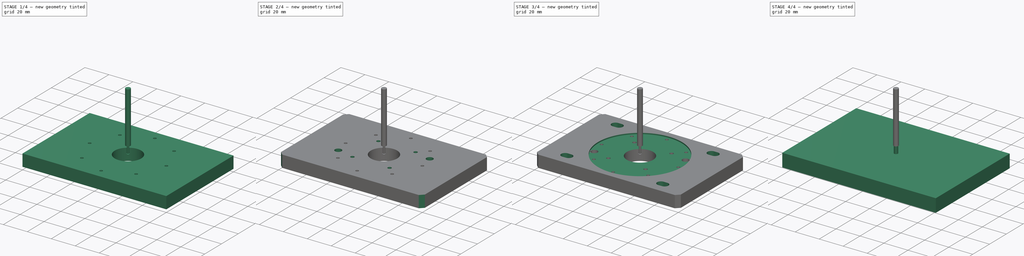
[diagram: build sequence overview — one tinted view per stage of 4, left to right]
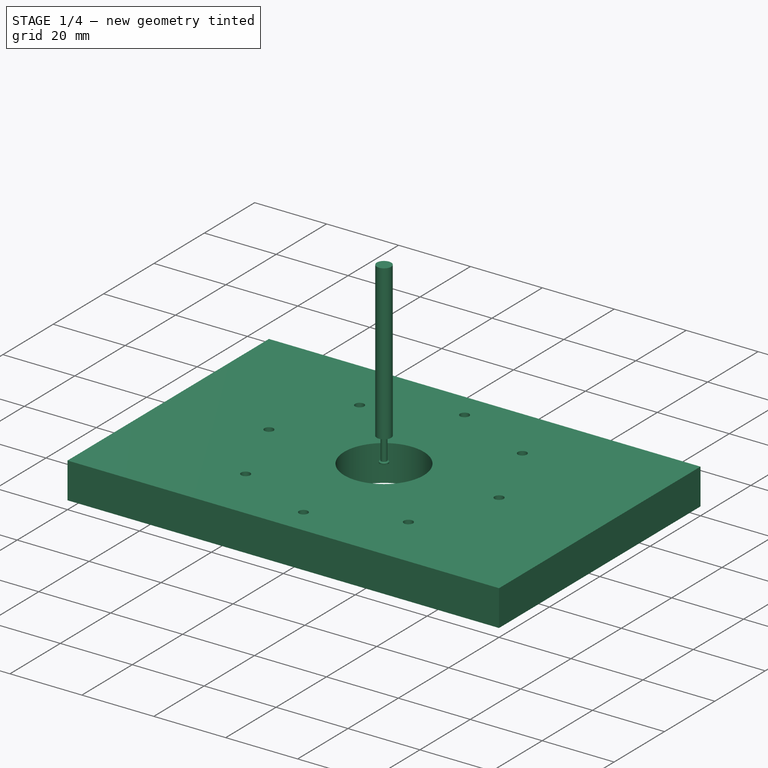
[diagram: stage 1 of 4 — iso view after this stage's code; geometry added in this stage tinted green]
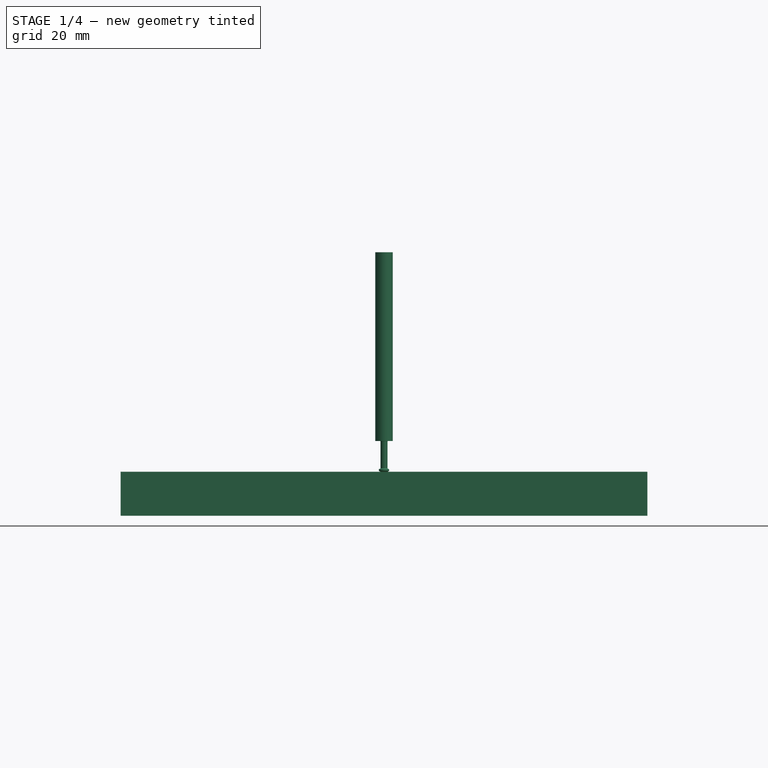
[diagram: stage 1 of 4 — front view after this stage's code; geometry added in this stage tinted green]
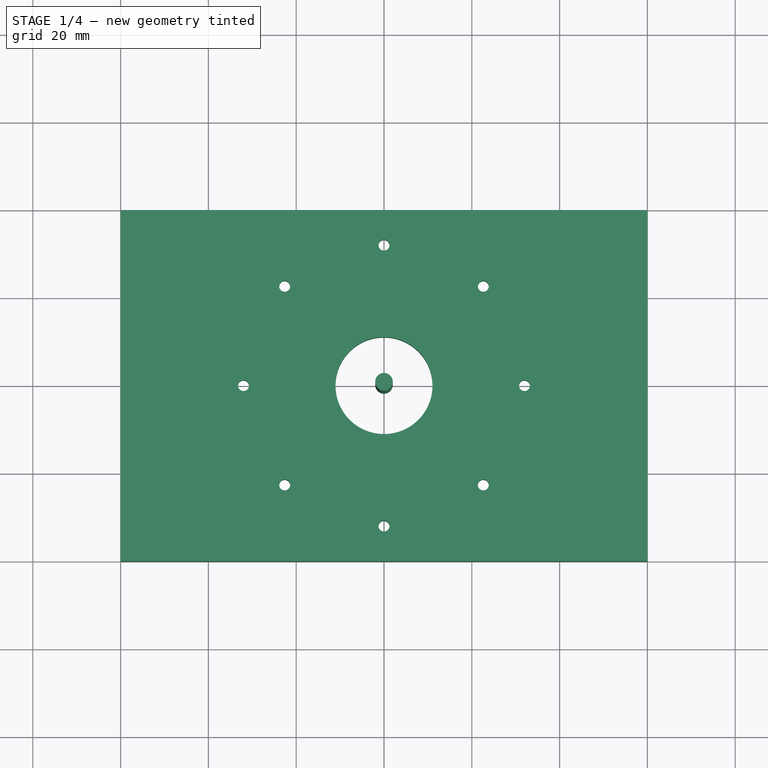
[diagram: stage 1 of 4 — top view after this stage's code; geometry added in this stage tinted green]
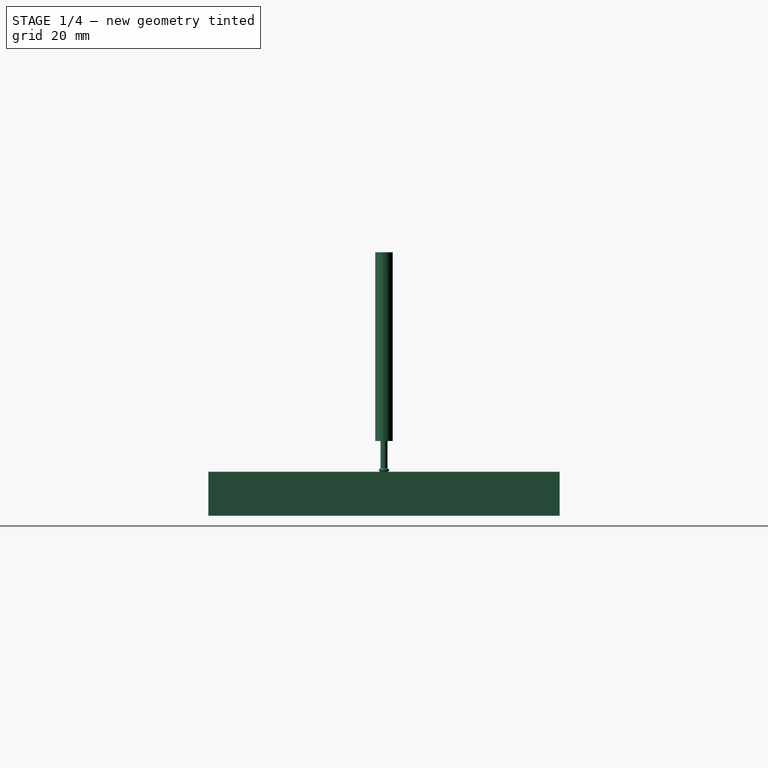
[diagram: stage 1 of 4 — right view after this stage's code; geometry added in this stage tinted green]
FCSTD DOCUMENT  (FreeCAD 0.21R33668 +26 (Git))
Label: 4axis_bracet
License: All rights reserved
LicenseURL: http://en.wikipedia.org/wiki/All_rights_reserved
objects: Path::FeaturePython×12, Sketcher::SketchObject×9, Part::FeaturePython×6, PartDesign::Pocket×6, App::FeaturePython×3, App::DocumentObjectGroup×3, PartDesign::Pad×1, PartDesign::Chamfer×1, PartDesign::Body×1
note: 38 computed .brp shape members not serialized (recipe doc carries the construction recipe); baked Part::Feature solids carry a one-line shape summary decoded from their .brp

FEATURE [Sketcher::SketchObject] Sketch
  FullyConstrained = true
  MapMode = 5
  Support = -> [XY_Plane]
  sketch-geometry (28):
    g0: Circle CenterX=0 CenterY=0 CenterZ=0 NormalX=0 NormalY=0 NormalZ=1 AngleXU=0 Radius=25
    g1: Circle CenterX=0 CenterY=0 CenterZ=0 NormalX=0 NormalY=0 NormalZ=1 AngleXU=0 Radius=35
    g2: Circle CenterX=0 CenterY=0 CenterZ=0 NormalX=0 NormalY=0 NormalZ=1 AngleXU=0 Radius=22
    g3: Circle CenterX=19.0526 CenterY=11 CenterZ=0 NormalX=0 NormalY=0 NormalZ=1 AngleXU=0 Radius=1.6
    g4: LineSegment StartX=0 StartY=0 StartZ=0 EndX=19.0526 EndY=11 EndZ=0
    g5: LineSegment StartX=0 StartY=0 StartZ=0 EndX=11 EndY=19.0526 EndZ=0
    g6: Circle CenterX=11 CenterY=19.0526 CenterZ=0 NormalX=0 NormalY=0 NormalZ=1 AngleXU=0 Radius=1.6
    g7: Circle CenterX=-19.0526 CenterY=11 CenterZ=0 NormalX=0 NormalY=0 NormalZ=1 AngleXU=0 Radius=1.6
    g8: Circle CenterX=-11 CenterY=19.0526 CenterZ=0 NormalX=0 NormalY=0 NormalZ=1 AngleXU=0 Radius=1.6
    g9: Circle CenterX=-19.0526 CenterY=-11 CenterZ=0 NormalX=0 NormalY=0 NormalZ=1 AngleXU=0 Radius=1.6
    g10: Circle CenterX=-11 CenterY=-19.0526 CenterZ=0 NormalX=0 NormalY=0 NormalZ=1 AngleXU=0 Radius=1.6
    g11: Circle CenterX=11 CenterY=-19.0526 CenterZ=0 NormalX=0 NormalY=0 NormalZ=1 AngleXU=0 Radius=1.6
    g12: Circle CenterX=19.0526 CenterY=-11 CenterZ=0 NormalX=0 NormalY=0 NormalZ=1 AngleXU=0 Radius=1.6
    g13: Circle CenterX=0 CenterY=0 CenterZ=0 NormalX=0 NormalY=0 NormalZ=1 AngleXU=0 Radius=32
    g14: LineSegment StartX=0 StartY=0 StartZ=0 EndX=22.6274 EndY=22.6274 EndZ=0
    g15: Circle CenterX=22.6274 CenterY=22.6274 CenterZ=0 NormalX=0 NormalY=0 NormalZ=1 AngleXU=0 Radius=1.6
    g16: Circle CenterX=32 CenterY=0 CenterZ=0 NormalX=0 NormalY=0 NormalZ=1 AngleXU=0 Radius=1.6
    g17: Circle CenterX=0 CenterY=32 CenterZ=0 NormalX=0 NormalY=0 NormalZ=1 AngleXU=0 Radius=1.6
    g18: Circle CenterX=-22.6274 CenterY=22.6274 CenterZ=0 NormalX=0 NormalY=0 NormalZ=1 AngleXU=0 Radius=1.6
    g19: Circle CenterX=-32 CenterY=0 CenterZ=0 NormalX=0 NormalY=0 NormalZ=1 AngleXU=0 Radius=1.6
    g20: Circle CenterX=-22.6274 CenterY=-22.6274 CenterZ=0 NormalX=0 NormalY=0 NormalZ=1 AngleXU=0 Radius=1.6
    g21: Circle CenterX=0 CenterY=-32 CenterZ=0 NormalX=0 NormalY=0 NormalZ=1 AngleXU=0 Radius=1.6
    g22: Circle CenterX=22.6274 CenterY=-22.6274 CenterZ=0 NormalX=0 NormalY=0 NormalZ=1 AngleXU=0 Radius=1.6
    g23: Circle CenterX=0 CenterY=0 CenterZ=0 NormalX=0 NormalY=0 NormalZ=1 AngleXU=0 Radius=25
    g24: Circle CenterX=29.5641 CenterY=12.2459 CenterZ=0 NormalX=0 NormalY=0 NormalZ=1 AngleXU=0 Radius=2.75
    g25: Circle CenterX=-29.5641 CenterY=-12.2459 CenterZ=0 NormalX=0 NormalY=0 NormalZ=1 AngleXU=0 Radius=2.75
    g26: LineSegment StartX=0 StartY=0 StartZ=0 EndX=29.5641 EndY=12.2459 EndZ=0
    g27: GeomPoint X=0 Y=0 Z=0
  constraints (58):
    c: Coincident(g0,g-1)
    c: Diameter(g0) = 50
    c: Coincident(g1,g0)
    c: Diameter(g1) = 70
    c: Coincident(g2,g0)
    c: Diameter(g2) = 44
    c: Coincident(g4,g0)
    c: PointOnObject(g4,g2)
    c: Coincident(g5,g0)
    c: PointOnObject(g5,g2)
    c: Angle(g-1,g4) = 0.523599
    c: Angle(g-1,g5) = 1.0472
    c: Coincident(g3,g4)
    c: Coincident(g6,g5)
    c: Equal(g3,g6)
    c: Equal(g3,g8)
    c: Equal(g3,g7)
    c: Equal(g3, g9-g12) x4
    c: Diameter(g3) = 3.2
    c: Symmetric(g6,g8,g-2)
    c: Symmetric(g3,g7,g-2)
    c: Symmetric(g7,g9,g-1)
    c: Symmetric(g8,g10,g-1)
    c: Symmetric(g6,g11,g-1)
    c: Symmetric(g3,g12,g-1)
    c: Coincident(g13,g0)
    c: Diameter(g13) = 64
    c: Coincident(g0,g14)
    c: Angle(g-1,g14) = 0.785398
    c: PointOnObject(g14,g13)
    c: Coincident(g15,g14)
    c: PointOnObject(g16,g13)
    c: PointOnObject(g17,g13)
    c: Equal(g17,g15)
    c: Equal(g17,g16)
    c: Diameter(g17) = 3.2
    c: Horizontal(g0,g16)
    c: Vertical(g0,g17)
    c: Equal(g17,g18)
    c: Equal(g18,g19)
    c: Equal(g19,g20)
    c: Equal(g20,g21)
    c: Equal(g21,g22)
    c: Symmetric(g18,g15,g-2)
    c: Symmetric(g19,g16,g-2)
    c: Symmetric(g18,g20,g-1)
    c: Symmetric(g17,g21,g-1)
    c: Symmetric(g22,g15,g-1)
    c: Coincident(g23,g0)
    c: Diameter(g23) = 50
    c: PointOnObject(g24,g13)
    c: Coincident(g26,g0)
    c: Angle(g-1,g26) = 0.392699
    c: Equal(g24,g25)
    c: Diameter(g24) = 5.5
    c: Coincident(g27,g0)
    c: Symmetric(g24,g25,g27)
    c: Coincident(g24,g26)
FEATURE [Sketcher::SketchObject] Sketch001
  FullyConstrained = true
  MapMode = 5
  Support = -> [XY_Plane]
  sketch-geometry (7):
    g0: Circle CenterX=0 CenterY=0 CenterZ=0 NormalX=0 NormalY=0 NormalZ=1 AngleXU=0 Radius=14
    g1: Circle CenterX=0 CenterY=0 CenterZ=0 NormalX=0 NormalY=0 NormalZ=1 AngleXU=0 Radius=18
    g2: Circle CenterX=0 CenterY=0 CenterZ=0 NormalX=0 NormalY=0 NormalZ=1 AngleXU=0 Radius=11
    g3: Circle CenterX=14 CenterY=0 CenterZ=0 NormalX=0 NormalY=0 NormalZ=1 AngleXU=0 Radius=1.6
    g4: Circle CenterX=0 CenterY=14 CenterZ=0 NormalX=0 NormalY=0 NormalZ=1 AngleXU=0 Radius=1.6
    g5: Circle CenterX=-14 CenterY=0 CenterZ=0 NormalX=0 NormalY=0 NormalZ=1 AngleXU=0 Radius=1.6
    g6: Circle CenterX=0 CenterY=-14 CenterZ=0 NormalX=0 NormalY=0 NormalZ=1 AngleXU=0 Radius=1.6
  constraints (18):
    c: Coincident(g0,g-1)
    c: Diameter(g0) = 28
    c: Coincident(g1,g0)
    c: Diameter(g1) = 36
    c: Coincident(g2,g1)
    c: Diameter(g2) = 22
    c: PointOnObject(g3,g0)
    c: PointOnObject(g4,g0)
    c: PointOnObject(g5,g0)
    c: PointOnObject(g6,g0)
    c: Equal(g3,g4)
    c: Equal(g3,g5)
    c: Equal(g3,g6)
    c: Diameter(g3) = 3.2
    c: Horizontal(g1,g3)
    c: Horizontal(g1,g5)
    c: Vertical(g1,g4)
    c: Vertical(g1,g6)
FEATURE [Sketcher::SketchObject] Sketch003
  ExternalGeometry = -> [Sketch]
  FullyConstrained = true
  MapMode = 5
  Support = -> [XY_Plane]
  sketch-geometry (12):
    g0: LineSegment StartX=-60 StartY=-40 StartZ=0 EndX=60 EndY=-40 EndZ=0
    g1: LineSegment StartX=60 StartY=-40 StartZ=0 EndX=60 EndY=40 EndZ=0
    g2: LineSegment StartX=60 StartY=40 StartZ=0 EndX=-60 EndY=40 EndZ=0
    g3: LineSegment StartX=-60 StartY=40 StartZ=0 EndX=-60 EndY=-40 EndZ=0
    g4: LineSegment StartX=-60 StartY=40 StartZ=0 EndX=-20 EndY=40 EndZ=0
    g5: LineSegment StartX=-20 StartY=40 StartZ=0 EndX=-20 EndY=-120 EndZ=0
    g6: LineSegment StartX=-20 StartY=-120 StartZ=0 EndX=-60 EndY=-120 EndZ=0
    g7: LineSegment StartX=-60 StartY=-120 StartZ=0 EndX=-60 EndY=40 EndZ=0
    g8: LineSegment StartX=60 StartY=40 StartZ=0 EndX=20 EndY=40 EndZ=0
    g9: LineSegment StartX=20 StartY=40 StartZ=0 EndX=20 EndY=-120 EndZ=0
    g10: LineSegment StartX=20 StartY=-120 StartZ=0 EndX=60 EndY=-120 EndZ=0
    g11: LineSegment StartX=60 StartY=-120 StartZ=0 EndX=60 EndY=40 EndZ=0
  constraints (34):
    c: Coincident(g0,g1)
    c: Coincident(g1,g2)
    c: Coincident(g2,g3)
    c: Coincident(g3,g0)
    c: Horizontal(g0)
    c: Horizontal(g2)
    c: Vertical(g1)
    c: Tangent(g1,g-3)
    c: DistanceY(g3,g3) = 80
    c: DistanceX(g2,g2) = 120
    c: Symmetric(g0,g1,g-4)
    c: Vertical(g3)
    c: Coincident(g4,g5)
    c: Coincident(g5,g6)
    c: Coincident(g6,g7)
    c: Coincident(g7,g4)
    c: Horizontal(g4)
    c: Horizontal(g6)
    c: Vertical(g5)
    c: Vertical(g7)
    c: Coincident(g4,g2)
    c: DistanceY(g5,g5) = 160
    c: DistanceX(g6,g6) = 40
    c: Coincident(g8,g9)
    c: Coincident(g9,g10)
    c: Coincident(g10,g11)
    c: Coincident(g11,g8)
    c: Horizontal(g8)
    c: Horizontal(g10)
    c: Vertical(g9)
    c: Vertical(g11)
    c: Coincident(g8,g1)
    c: Horizontal(g10,g6)
    c: Equal(g10,g6)
FEATURE [PartDesign::Pad] Pad
  Direction = (0,0,1)
  Length = 10
  Length2 = 10
  Profile = -> Sketch003
  ReferenceAxis = -> Sketch003 [N_Axis]
  Reversed = true
  Type = 0
FEATURE [Path::FeaturePython] _mm_Endmill  label="2mm Endmill001"  # Path/CAM operation (typed FeaturePython)
  HorizFeed = 6.66667
  HorizRapid = 6.66667
  SpindleDir = 0
  SpindleSpeed = 8000
  Tool = -> ToolBit001
  ToolNumber = 2
  VertFeed = 6.66667
  VertRapid = 6.66667
  expr: HorizRapid = SetupSheet.HorizRapid
  expr: VertRapid = SetupSheet.VertRapid
FEATURE [Path::FeaturePython] _mm_Endmill001  label="3mm Endmill001"  # Path/CAM operation (typed FeaturePython)
  HorizFeed = 6.66667
  HorizRapid = 6.66667
  SpindleDir = 0
  SpindleSpeed = 8000
  Tool = -> ToolBit002
  ToolNumber = 3
  VertFeed = 6.66667
  VertRapid = 6.66667
  expr: HorizRapid = SetupSheet.HorizRapid
  expr: VertRapid = SetupSheet.VertRapid
FEATURE [Sketcher::SketchObject] Sketch004
  ExternalGeometry = -> [Sketch]
  FullyConstrained = true
  MapMode = 5
  Support = -> [Pad]
  sketch-geometry (8):
    g0: Circle CenterX=-22.6274 CenterY=22.6274 CenterZ=0 NormalX=0 NormalY=0 NormalZ=1 AngleXU=0 Radius=1.25
    g1: Circle CenterX=0 CenterY=32 CenterZ=0 NormalX=0 NormalY=0 NormalZ=1 AngleXU=0 Radius=1.25
    g2: Circle CenterX=22.6274 CenterY=22.6274 CenterZ=0 NormalX=0 NormalY=0 NormalZ=1 AngleXU=0 Radius=1.25
    g3: Circle CenterX=32 CenterY=0 CenterZ=0 NormalX=0 NormalY=0 NormalZ=1 AngleXU=0 Radius=1.25
    g4: Circle CenterX=22.6274 CenterY=-22.6274 CenterZ=0 NormalX=0 NormalY=0 NormalZ=1 AngleXU=0 Radius=1.25
    g5: Circle CenterX=0 CenterY=-32 CenterZ=0 NormalX=0 NormalY=0 NormalZ=1 AngleXU=0 Radius=1.25
    g6: Circle CenterX=-22.6274 CenterY=-22.6274 CenterZ=0 NormalX=0 NormalY=0 NormalZ=1 AngleXU=0 Radius=1.25
    g7: Circle CenterX=-32 CenterY=0 CenterZ=0 NormalX=0 NormalY=0 NormalZ=1 AngleXU=0 Radius=1.25
  constraints (10):
    c: Coincident(g0,g-13)
    c: Coincident(g1,g-3)
    c: Coincident(g2,g-4)
    c: Coincident(g3,g-6)
    c: Coincident(g4,g-7)
    c: Coincident(g5,g-9)
    c: Coincident(g6,g-10)
    c: Coincident(g7,g-12)
    c: Equal(g7, g0-g6) x7
    c: Diameter(g7) = 2.5
FEATURE [PartDesign::Pocket] Pocket
  BaseFeature = -> Pad
  Direction = (0,0,-1)
  Length = 5
  Length2 = 5
  Profile = -> Sketch004
  ReferenceAxis = -> Sketch004 [N_Axis]
  Type = 1
FEATURE [Sketcher::SketchObject] Sketch006
  FullyConstrained = true
  MapMode = 5
  expr: Constraints[1] = 22 mm + 0.1 mm
  sketch-geometry (1):
    g0: Circle CenterX=0 CenterY=0 CenterZ=0 NormalX=0 NormalY=0 NormalZ=1 AngleXU=0 Radius=11.05
  constraints (2):
    c: Coincident(g0,g-1)
    c: Diameter(g0) = 22.1
FEATURE [PartDesign::Pocket] Pocket002
  AlongSketchNormal = false
  BaseFeature = -> Pocket
  Direction = (0,0,-1)
  Length = 6.9
  Length2 = 5
  Profile = -> Sketch006
  ReferenceAxis = -> Sketch006 [N_Axis]
  Type = 1
  expr: Length = 1 mm + 3.3 mm + 2.6 mm
FEATURE [Path::FeaturePython] Profile  # Path/CAM operation (typed FeaturePython)
  Active = true
  AreaParams:
    Tolerance = 1e-07
    FitArcs = True
    Simplify = False
    CleanDistance = 0.0
    Accuracy = 0.01
    Unit = 1.0
    MinArcPoints = 4
    MaxArcPoints = 100
    ClipperScale = 10000000.0
    Fill = 0
    Coplanar = 0
    Reorient = True
    Outline = False
    Explode = False
    OpenMode = 0
    Deflection = 0.01
    SubjectFill = 0
    ClipFill = 0
    Offset = -1.5
    ExtraPass = 0
    Stepover = 0.0
    LastStepover = 0.0
    JoinType = 0
    EndType = 0
    MiterLimit = 2.0
    RoundPrecision = 0.0
    PocketMode = 0
    ToolRadius = 1.0
    PocketExtraOffset = 0.0
    PocketStepover = 0.0
    PocketLastStepover = 0.0
    FromCenter = False
    Angle = 45.0
    AngleShift = 0.0
    Shift = 0.0
    Thicken = False
    SectionCount = -1
    Stepdown = 1.0
    SectionOffset = 0.0
    SectionTolerance = 1e-07
    SectionMode = 2
    Project = False
  Base = -> [Clone]
  ClearanceHeight = 6
  CoolantMode = 0
  CycleTime = 00:00:39
  Direction = 0
  FinalDepth = -1
  HandleMultipleFeatures = 0
  JoinType = 0
  MiterLimit = 0.1
  OffsetExtra = 0
  OpFinalDepth = -1
  OpStartDepth = 1
  OpStockZMax = 1
  OpStockZMin = -10
  OpToolDiameter = 3
  PathParams = {'orientation': 1, 'feedrate': 6.666666666666667, 'feedrate_v': 6.666666666666667, 'verbose': True, 'resume_height': 4.0, 'retraction': 6.0, 'return_end': True, 'preamble': False}
  SafeHeight = 4
  Side = 1
  SplitArcs = false
  StartDepth = 1
  StartPoint = (0,0,0)
  StepDown = 3
  ToolController = -> _mm_Endmill001
  UseComp = true
  UseStartPoint = false
  processCircles = false
  processHoles = false
  processPerimeter = true
  expr: ClearanceHeight = OpStockZMax + SetupSheet.ClearanceHeightOffset
  expr: FinalDepth = OpFinalDepth
  expr: SafeHeight = OpStockZMax + SetupSheet.SafeHeightOffset
  expr: StartDepth = OpStartDepth
  expr: StepDown = OpToolDiameter
FEATURE [Part::FeaturePython] ToolBit003  label="3mm-thread-cutter002"  # Path/CAM toolbit (typed FeaturePython)
  BitPropertyNames = Chipload | Crest | Diameter | Flutes | Length | Material | NeckDiameter | NeckLength | ShankDiameter | cuttingAngle
  BitShape = C:/Program Files/FreeCAD 0.21/Mod\Path\Tools\Shape\thread-mill.fcstd
  Chipload = 0
  Crest = 0.35
  Diameter = 2.35
  Flutes = 0
  Length = 50
  Material = 0
  NeckDiameter = 1.6
  NeckLength = 7
  ShankDiameter = 4
  ShapeName = thread_mill
  cuttingAngle = 60
FEATURE [Path::FeaturePython] _mm_thread_cutter  label="3mm-thread-cutter001"  # Path/CAM operation (typed FeaturePython)
  HorizFeed = 6.66
  HorizRapid = 6.66667
  SpindleDir = 0
  SpindleSpeed = 8000
  Tool = -> ToolBit003
  ToolNumber = 4
  VertFeed = 6.66
  VertRapid = 6.66667
  expr: HorizRapid = SetupSheet.HorizRapid
  expr: VertRapid = SetupSheet.VertRapid
FEATURE [App::DocumentObjectGroup] Tools
  Group = -> [_mm_Endmill,_mm_Endmill001,_mm_thread_cutter]
FEATURE [Path::FeaturePython] ThreadMilling  # Path/CAM operation (typed FeaturePython)
  Active = true
  Base = -> [Clone]
  ClearanceHeight = 6
  CoolantMode = 0
  CycleTime = 00:02:03
  Direction = 0
  Disabled = Clone.Face23 | Clone.Face30 | Clone.Face33 | Clone.Face34 | Clone.Face36 | Clone.Face38 | Clone.Face42 | Clone.Face43
  FinalDepth = -5
  LeadInOut = false
  MajorDiameter = 3.086
  MinorDiameter = 2.529
  OpFinalDepth = -1
  OpStartDepth = 1
  OpStockZMax = 1
  OpStockZMin = -10
  OpToolDiameter = 2.35
  Passes = 3
  Pitch = 0.5
  SafeHeight = 4
  StartDepth = 1
  TPI = 0
  ThreadFit = 50
  ThreadName = M3 x 0.5
  ThreadOrientation = 1
  ThreadType = 8
  ToolController = -> _mm_thread_cutter
  expr: ClearanceHeight = OpStockZMax + SetupSheet.ClearanceHeightOffset
  expr: FinalDepth = -10 mm + 5 mm
  expr: SafeHeight = OpStockZMax + SetupSheet.SafeHeightOffset
  expr: StartDepth = OpStartDepth
FEATURE [App::DocumentObjectGroup] Operations
  Group = -> [Adaptive005,MillFace,Adaptive,Adaptive001,Adaptive002,Drilling,ThreadMilling,Profile]
FEATURE [Path::FeaturePython] Job  # Path/CAM operation (typed FeaturePython)
  CycleTime = 00:41:56
  Fixtures = G54
  GeometryTolerance = 0.01
  JobType = 0
  LastPostProcessDate = 2024-03-31 15:04:59.675897
  LastPostProcessOutput = <userpath>\Desktop\CNC\MyCNCTable\4axis_bracet.nc
  Model = -> Model
  Operations = -> Operations
  OrderOutputBy = 0
  PostProcessor = 10
  PostProcessorArgs = --bcnc
  PostProcessorOutputFile = %D/%d.nc
  SetupSheet = -> SetupSheet
  SplitOutput = false
  Stock = -> Stock001
  Tools = -> Tools
note: 3 file-system paths scrubbed to <path> (originals preserved in the JSON sidecar)
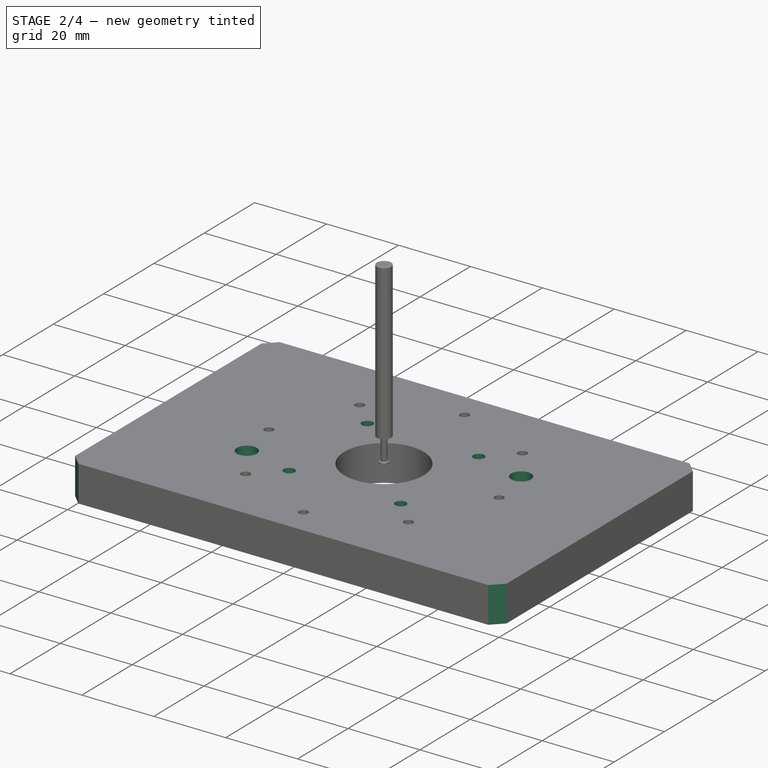
[diagram: stage 2 of 4 — iso view after this stage's code; geometry added in this stage tinted green]
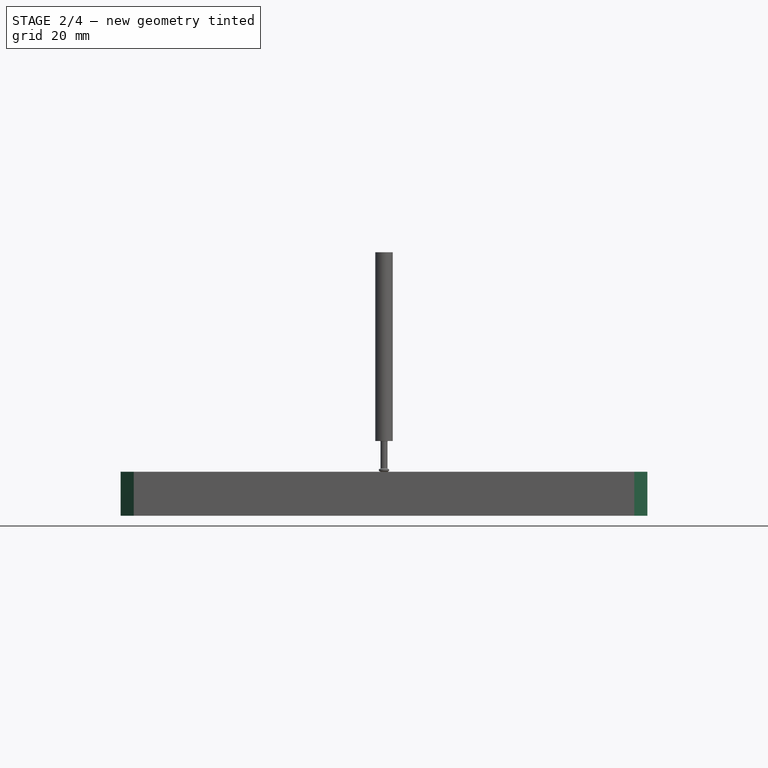
[diagram: stage 2 of 4 — front view after this stage's code; geometry added in this stage tinted green]
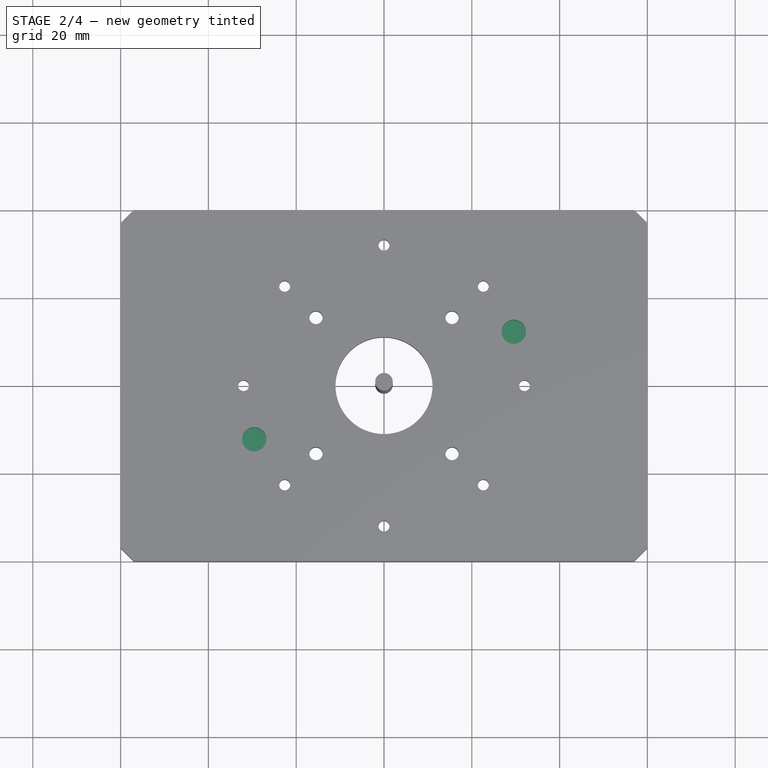
[diagram: stage 2 of 4 — top view after this stage's code; geometry added in this stage tinted green]
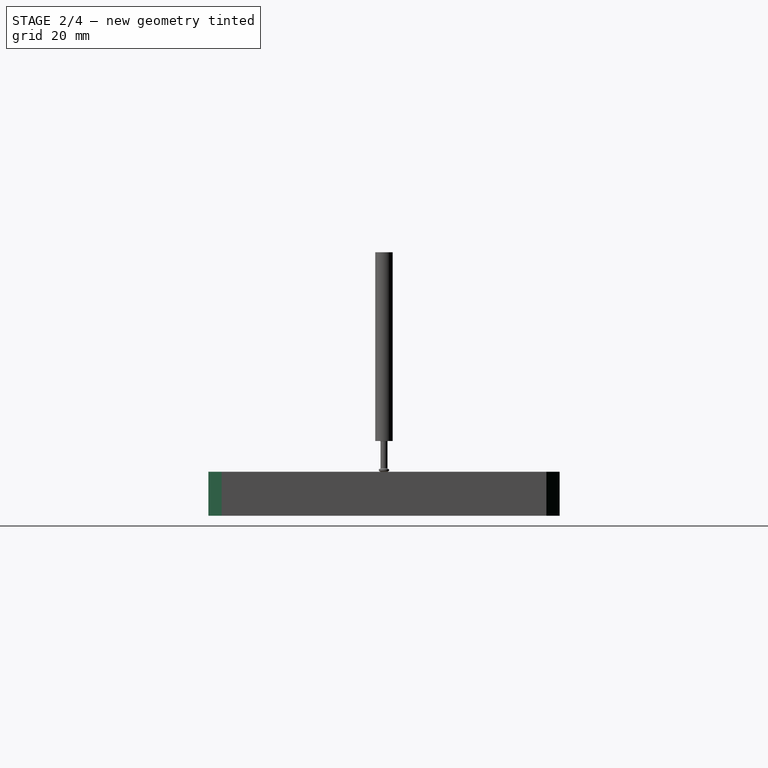
[diagram: stage 2 of 4 — right view after this stage's code; geometry added in this stage tinted green]
FEATURE [PartDesign::Chamfer] Chamfer
  Angle = 45
  Base = -> Pocket002 [Edge2,Edge8,Edge5,Edge1]
  BaseFeature = -> Pocket002
  ChamferType = 0
  FlipDirection = false
  Size = 3
  Size2 = 1
  SupportTransform = false
  UseAllEdges = false
FEATURE [Sketcher::SketchObject] Sketch010
  FullyConstrained = false
  MapMode = 5
  Support = -> [Pad]
  expr: Constraints[0] = 22 mm + 0.03 mm
  sketch-geometry (16):
    g0: Circle CenterX=0 CenterY=0 CenterZ=0 NormalX=0 NormalY=0 NormalZ=1 AngleXU=0 Radius=11.015
    g1: LineSegment StartX=-15.5 StartY=15.5 StartZ=0 EndX=-15.5 EndY=-15.5 EndZ=0
    g2: LineSegment StartX=-15.5 StartY=-15.5 StartZ=0 EndX=15.5 EndY=-15.5 EndZ=0
    g3: LineSegment StartX=15.5 StartY=-15.5 StartZ=0 EndX=15.5 EndY=15.5 EndZ=0
    g4: LineSegment StartX=15.5 StartY=15.5 StartZ=0 EndX=-15.5 EndY=15.5 EndZ=0
    g5: GeomPoint X=0 Y=0 Z=0
    g6: Circle CenterX=-15.5 CenterY=15.5 CenterZ=0 NormalX=0 NormalY=0 NormalZ=1 AngleXU=0 Radius=1.5
    g7: Circle CenterX=15.5 CenterY=15.5 CenterZ=0 NormalX=0 NormalY=0 NormalZ=1 AngleXU=0 Radius=1.5
    g8: Circle CenterX=15.5 CenterY=-15.5 CenterZ=0 NormalX=0 NormalY=0 NormalZ=1 AngleXU=0 Radius=1.5
    g9: Circle CenterX=-15.5 CenterY=-15.5 CenterZ=0 NormalX=0 NormalY=0 NormalZ=1 AngleXU=0 Radius=1.5
    g10: GeomPoint X=63 Y=2e-16 Z=0
    g11: LineSegment StartX=-21 StartY=21 StartZ=0 EndX=-21 EndY=-21 EndZ=0
    g12: LineSegment StartX=-21 StartY=-21 StartZ=0 EndX=21 EndY=-21 EndZ=0
    g13: LineSegment StartX=21 StartY=-21 StartZ=0 EndX=21 EndY=21 EndZ=0
    g14: LineSegment StartX=21 StartY=21 StartZ=0 EndX=-21 EndY=21 EndZ=0
    g15: GeomPoint X=0 Y=0 Z=0
  constraints (35):
    c: Diameter(g0) = 22.03
    c: Coincident(g1,g2)
    c: Coincident(g2,g3)
    c: Coincident(g3,g4)
    c: Coincident(g4,g1)
    c: Horizontal(g2)
    c: Horizontal(g4)
    c: Vertical(g1)
    c: Vertical(g3)
    c: Symmetric(g2,g1,g5)
    c: DistanceX(g4,g4) = 31
    c: DistanceY(g1,g1) = 31
    c: Coincident(g6,g1)
    c: Coincident(g7,g3)
    c: Coincident(g8,g2)
    c: Coincident(g9,g1)
    c: Equal(g6,g7)
    c: Equal(g6,g8)
    c: Equal(g6,g9)
    c: Diameter(g6) = 3
    c: PointOnObject(g10,g-1)
    c: Coincident(g11,g12)
    c: Coincident(g12,g13)
    c: Coincident(g13,g14)
    c: Coincident(g14,g11)
    c: Horizontal(g12)
    c: Horizontal(g14)
    c: Vertical(g11)
    c: Vertical(g13)
    c: Symmetric(g12,g11,g15)
    c: DistanceY(g13,g13) = 42
    c: DistanceX(g14,g14) = 42
    c: Coincident(g5,g15)
    c: Coincident(g5,g0)
    c: Coincident(g0,g-1)
FEATURE [PartDesign::Pocket] Pocket006
  BaseFeature = -> Chamfer
  Direction = (0,0,-1)
  Length = 5
  Length2 = 5
  Profile = -> Sketch010
  ReferenceAxis = -> Sketch010 [N_Axis]
  Type = 1
FEATURE [Sketcher::SketchObject] Sketch011
  ExternalGeometry = -> [Sketch]
  FullyConstrained = true
  MapMode = 5
  Support = -> [Pocket]
  sketch-geometry (2):
    g0: Circle CenterX=-29.5641 CenterY=-12.2459 CenterZ=0 NormalX=0 NormalY=0 NormalZ=1 AngleXU=0 Radius=2.75
    g1: Circle CenterX=29.5641 CenterY=12.2459 CenterZ=0 NormalX=0 NormalY=0 NormalZ=1 AngleXU=0 Radius=2.75
  constraints (4):
    c: Coincident(g0,g-3)
    c: Coincident(g1,g-4)
    c: Equal(g-3,g0)
    c: Equal(g0,g1)
FEATURE [PartDesign::Pocket] Pocket007
  BaseFeature = -> Pocket006
  Direction = (0,0,-1)
  Length = 6
  Length2 = 5
  Profile = -> Sketch011
  ReferenceAxis = -> Sketch011 [N_Axis]
  Type = 0
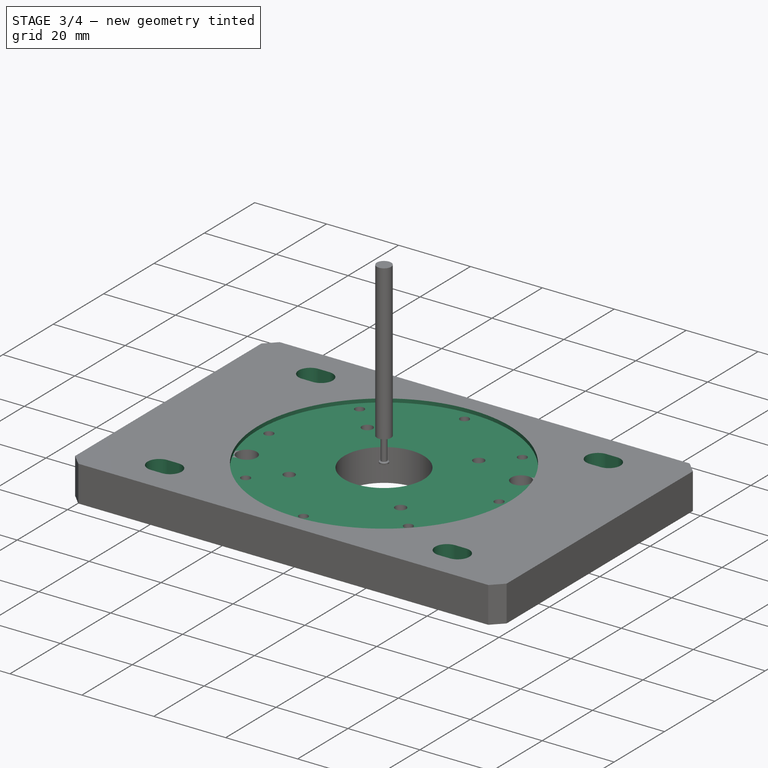
[diagram: stage 3 of 4 — iso view after this stage's code; geometry added in this stage tinted green]
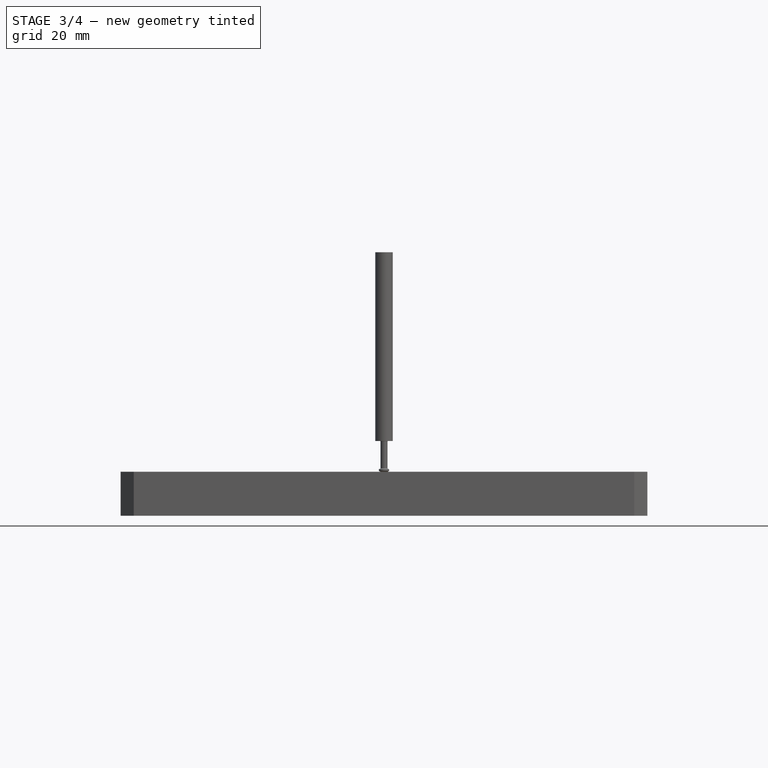
[diagram: stage 3 of 4 — front view after this stage's code; geometry added in this stage tinted green]
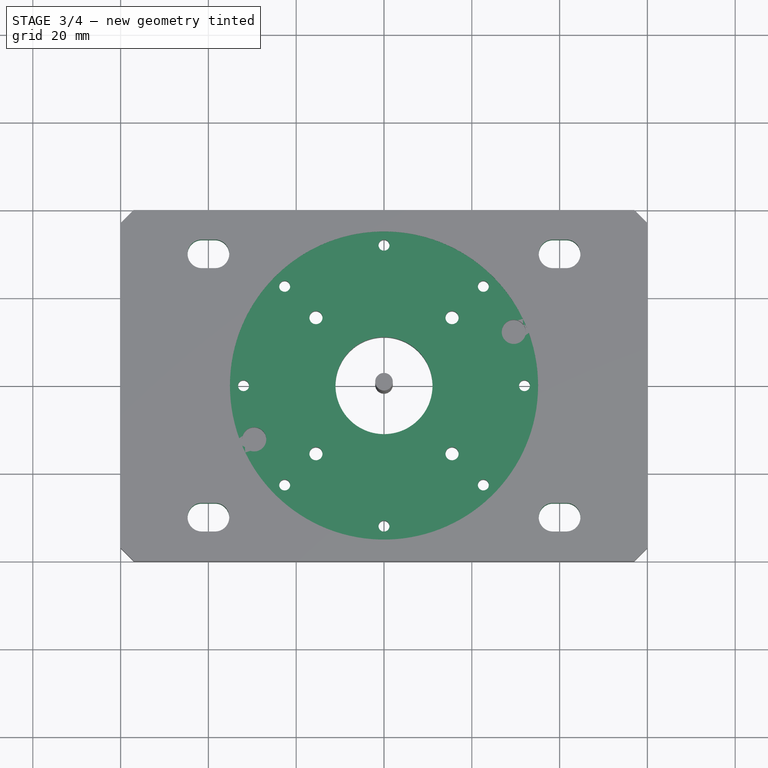
[diagram: stage 3 of 4 — top view after this stage's code; geometry added in this stage tinted green]
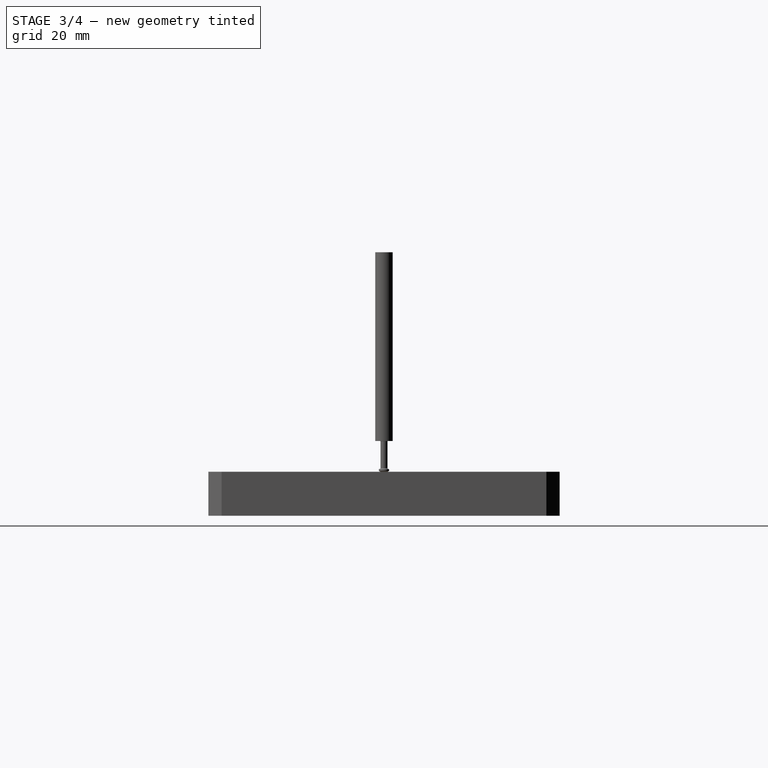
[diagram: stage 3 of 4 — right view after this stage's code; geometry added in this stage tinted green]
FEATURE [Sketcher::SketchObject] Sketch012
  ExternalGeometry = -> [Sketch]
  FullyConstrained = true
  MapMode = 5
  Support = -> [Pocket002]
  sketch-geometry (1):
    g0: Circle CenterX=0 CenterY=0 CenterZ=0 NormalX=0 NormalY=0 NormalZ=1 AngleXU=0 Radius=35.1
  constraints (2):
    c: Coincident(g0,g-3)
    c: Distance(g0,g-3) = 0.1
FEATURE [PartDesign::Pocket] Pocket008
  BaseFeature = -> Pocket007
  Direction = (0,0,-1)
  Length = 1
  Length2 = 5
  Profile = -> Sketch012
  ReferenceAxis = -> Sketch012 [N_Axis]
  Type = 0
FEATURE [Sketcher::SketchObject] Sketch013
  FullyConstrained = true
  MapMode = 5
  Support = -> [Pocket008]
  sketch-geometry (29):
    g0: ArcOfCircle CenterX=-41.5 CenterY=30 CenterZ=0 NormalX=0 NormalY=0 NormalZ=1 AngleXU=0 Radius=3.25 StartAngle=1.5708 EndAngle=4.71239
    g1: ArcOfCircle CenterX=-38.5 CenterY=30 CenterZ=0 NormalX=0 NormalY=0 NormalZ=1 AngleXU=0 Radius=3.25 StartAngle=4.71239 EndAngle=7.85398
    g2: LineSegment StartX=-41.5 StartY=26.75 StartZ=0 EndX=-38.5 EndY=26.75 EndZ=0
    g3: LineSegment StartX=-38.5 StartY=33.25 StartZ=0 EndX=-41.5 EndY=33.25 EndZ=0
    g4: ArcOfCircle CenterX=38.5 CenterY=30 CenterZ=0 NormalX=0 NormalY=0 NormalZ=1 AngleXU=0 Radius=3.25 StartAngle=1.5708 EndAngle=4.71239
    g5: ArcOfCircle CenterX=41.5 CenterY=30 CenterZ=0 NormalX=0 NormalY=0 NormalZ=1 AngleXU=0 Radius=3.25 StartAngle=4.71239 EndAngle=7.85398
    g6: LineSegment StartX=38.5 StartY=26.75 StartZ=0 EndX=41.5 EndY=26.75 EndZ=0
    g7: LineSegment StartX=41.5 StartY=33.25 StartZ=0 EndX=38.5 EndY=33.25 EndZ=0
    g8: LineSegment StartX=-41.5 StartY=33.25 StartZ=0 EndX=38.5 EndY=33.25 EndZ=0
    g9: ArcOfCircle CenterX=-41.5 CenterY=1.0106e-12 CenterZ=0 NormalX=0 NormalY=0 NormalZ=1 AngleXU=0 Radius=3.25 StartAngle=1.5708 EndAngle=4.71239
    g10: ArcOfCircle CenterX=-38.5 CenterY=1.0107e-12 CenterZ=0 NormalX=0 NormalY=0 NormalZ=1 AngleXU=0 Radius=3.25 StartAngle=4.71239 EndAngle=7.85398
    g11: LineSegment StartX=-41.5 StartY=-3.25 StartZ=0 EndX=-38.5 EndY=-3.25 EndZ=0
    g12: LineSegment StartX=-38.5 StartY=3.25 StartZ=0 EndX=-41.5 EndY=3.25 EndZ=0
    g13: LineSegment StartX=-41.5 StartY=33.25 StartZ=0 EndX=-41.5 EndY=3.25 EndZ=0
    g14: ArcOfCircle CenterX=38.5 CenterY=1.0106e-12 CenterZ=0 NormalX=0 NormalY=0 NormalZ=1 AngleXU=0 Radius=3.25 StartAngle=1.5708 EndAngle=4.71239
    g15: ArcOfCircle CenterX=41.5 CenterY=1.0109e-12 CenterZ=0 NormalX=0 NormalY=0 NormalZ=1 AngleXU=0 Radius=3.25 StartAngle=4.71239 EndAngle=7.85398
    g16: LineSegment StartX=38.5 StartY=-3.25 StartZ=0 EndX=41.5 EndY=-3.25 EndZ=0
    g17: LineSegment StartX=41.5 StartY=3.25 StartZ=0 EndX=38.5 EndY=3.25 EndZ=0
    g18: LineSegment StartX=-41.5 StartY=3.25 StartZ=0 EndX=38.5 EndY=3.25 EndZ=0
    g19: ArcOfCircle CenterX=-41.5 CenterY=-30 CenterZ=0 NormalX=0 NormalY=0 NormalZ=1 AngleXU=0 Radius=3.25 StartAngle=1.5708 EndAngle=4.71239
    g20: ArcOfCircle CenterX=-38.5 CenterY=-30 CenterZ=0 NormalX=0 NormalY=0 NormalZ=1 AngleXU=0 Radius=3.25 StartAngle=4.71239 EndAngle=7.85398
    g21: LineSegment StartX=-41.5 StartY=-33.25 StartZ=0 EndX=-38.5 EndY=-33.25 EndZ=0
    g22: LineSegment StartX=-38.5 StartY=-26.75 StartZ=0 EndX=-41.5 EndY=-26.75 EndZ=0
    g23: LineSegment StartX=-41.5 StartY=3.25 StartZ=0 EndX=-41.5 EndY=-26.75 EndZ=0
    g24: ArcOfCircle CenterX=38.5 CenterY=-30 CenterZ=0 NormalX=0 NormalY=0 NormalZ=1 AngleXU=0 Radius=3.25 StartAngle=1.5708 EndAngle=4.71239
    g25: ArcOfCircle CenterX=41.5 CenterY=-30 CenterZ=0 NormalX=0 NormalY=0 NormalZ=1 AngleXU=0 Radius=3.25 StartAngle=4.71239 EndAngle=7.85398
    g26: LineSegment StartX=38.5 StartY=-33.25 StartZ=0 EndX=41.5 EndY=-33.25 EndZ=0
    g27: LineSegment StartX=41.5 StartY=-26.75 StartZ=0 EndX=38.5 EndY=-26.75 EndZ=0
    g28: LineSegment StartX=-41.5 StartY=-26.75 StartZ=0 EndX=38.5 EndY=-26.75 EndZ=0
  constraints (70):
    c: Tangent(g0,g2) = -1.5708
    c: Tangent(g2,g1) = -1.5708
    c: Tangent(g1,g3) = -1.5708
    c: Tangent(g3,g0) = -1.5708
    c: Equal(g0,g1)
    c: Horizontal(g2)
    c: Diameter(g1) = 6.5
    c: DistanceX(g3,g3) = 3
    c: Tangent(g4,g6) = -1.5708
    c: Tangent(g6,g5) = -1.5708
    c: Tangent(g5,g7) = -1.5708
    c: Tangent(g7,g4) = -1.5708
    c: Equal(g4,g5)
    c: Horizontal(g6)
    c: Equal(g1,g5) = 6.5
    c: Equal(g3,g7) = 3
    c: Coincident(g0,g8)
    c: Coincident(g4,g8)
    c: Distance(g8) = 80
    c: Angle(g8) = 0
    c: Tangent(g9,g11) = -1.5708
    c: Tangent(g11,g10) = -1.5708
    c: Tangent(g10,g12) = -1.5708
    c: Tangent(g12,g9) = -1.5708
    c: Equal(g9,g10)
    c: Horizontal(g11)
    c: Equal(g1,g10) = 6.5
    c: Equal(g3,g12) = 3
    c: Coincident(g0,g13)
    c: Coincident(g9,g13)
    c: Distance(g13) = 30
    c: Perpendicular(g13,g8)
    c: Tangent(g14,g16) = -1.5708
    c: Tangent(g16,g15) = -1.5708
    c: Tangent(g15,g17) = -1.5708
    c: Tangent(g17,g14) = -1.5708
    c: Equal(g14,g15)
    c: Horizontal(g16)
    c: Equal(g1,g15) = 6.5
    c: Equal(g3,g17) = 3
    c: Coincident(g9,g18)
    c: Coincident(g14,g18)
    c: Equal(g8,g18)
    c: Parallel(g18,g8)
    c: Tangent(g19,g21) = -1.5708
    c: Tangent(g21,g20) = -1.5708
    c: Tangent(g20,g22) = -1.5708
    c: Tangent(g22,g19) = -1.5708
    c: Equal(g19,g20)
    c: Horizontal(g21)
    c: Equal(g1,g20) = 6.5
    c: Equal(g3,g22) = 3
    c: Coincident(g9,g23)
    c: Coincident(g19,g23)
    c: Equal(g13,g23)
    c: Perpendicular(g23,g8)
    c: Tangent(g24,g26) = -1.5708
    c: Tangent(g26,g25) = -1.5708
    c: Tangent(g25,g27) = -1.5708
    c: Tangent(g27,g24) = -1.5708
    c: Equal(g24,g25)
    c: Horizontal(g26)
    c: Equal(g1,g25) = 6.5
    c: Equal(g3,g27) = 3
    c: Coincident(g19,g28)
    c: Coincident(g24,g28)
    c: Equal(g8,g28)
    c: Parallel(g28,g8)
    c: DistanceY(g-1,g1) = 30
    c: DistanceX(g1,g-1) = 38.5
FEATURE [PartDesign::Pocket] Pocket009
  BaseFeature = -> Pocket008
  Direction = (0,0,-1)
  Length = 5
  Length2 = 5
  Profile = -> Sketch013
  ReferenceAxis = -> Sketch013 [N_Axis]
  Type = 1
FEATURE [PartDesign::Body] Body
  Group = -> [Sketch,Sketch001,Sketch003,Pad,Sketch004,Pocket,Sketch006,Pocket002,Chamfer,Sketch010,Pocket006,Sketch011,Pocket007,Sketch012,Pocket008,Sketch013,Pocket009]
  Origin = -> Origin
  Tip = -> Pocket009
FEATURE [Path::FeaturePython] MillFace  label="MillFace_backface"  # Path/CAM operation (typed FeaturePython)
  Active = true
  AreaParams:
    Tolerance = 1e-07
    FitArcs = True
    Simplify = False
    CleanDistance = 0.0
    Accuracy = 0.01
    Unit = 1.0
    MinArcPoints = 4
    MaxArcPoints = 100
    ClipperScale = 10000000.0
    Fill = 0
    Coplanar = 0
    Reorient = True
    Outline = False
    Explode = False
    OpenMode = 0
    Deflection = 0.01
    SubjectFill = 0
    ClipFill = 0
    Offset = 0.0
    ExtraPass = 0
    Stepover = 0.0
    LastStepover = 0.0
    JoinType = 0
    EndType = 0
    MiterLimit = 2.0
    RoundPrecision = 0.0
    PocketMode = 4
    ToolRadius = 1.5
    PocketExtraOffset = 0.0
    PocketStepover = 1.5
    PocketLastStepover = 0.0
    FromCenter = True
    Angle = 45.0
    AngleShift = 0.0
    Shift = 0.0
    Thicken = False
    SectionCount = -1
    Stepdown = 1.0
    SectionOffset = 0.0
    SectionTolerance = 1e-07
    SectionMode = 2
    Project = False
  BoundaryShape = 3
  ClearEdges = false
  ClearanceHeight = 6
  CoolantMode = 0
  CutMode = 1
  CycleTime = 00:19:45
  ExcludeRaisedAreas = false
  ExtraOffset = 0
  FinalDepth = 0
  FinishDepth = 0
  KeepToolDown = false
  MinTravel = false
  OffsetPattern = 2
  OpFinalDepth = 0
  OpStartDepth = 1
  OpStockZMax = 1
  OpStockZMin = -10
  OpToolDiameter = 3
  PathParams = {'orientation': 0, 'feedrate': 6.666666666666667, 'feedrate_v': 6.666666666666667, 'verbose': True, 'resume_height': 4.0, 'retraction': 6.0, 'return_end': True, 'preamble': False}
  PocketLastStepOver = 0
  SafeHeight = 4
  SplitArcs = false
  StartAt = 0
  StartDepth = 1
  StartPoint = (0,0,0)
  StepDown = 3
  StepOver = 50
  ToolController = -> _mm_Endmill001
  UseStartPoint = false
  ZigZagAngle = 45
  expr: ClearanceHeight = OpStockZMax + SetupSheet.ClearanceHeightOffset
  expr: FinalDepth = OpFinalDepth
  expr: SafeHeight = OpStockZMax + SetupSheet.SafeHeightOffset
  expr: StartDepth = OpStartDepth
  expr: StepDown = OpToolDiameter
FEATURE [Part::FeaturePython] Clone  label="Model-Body"  # Draft clone (typed FeaturePython)
  AttacherType = Attacher::AttachEngine3D
  Fuse = false
  Objects = -> [Body]
  PathResource = Model
  Scale = (1,1,1)
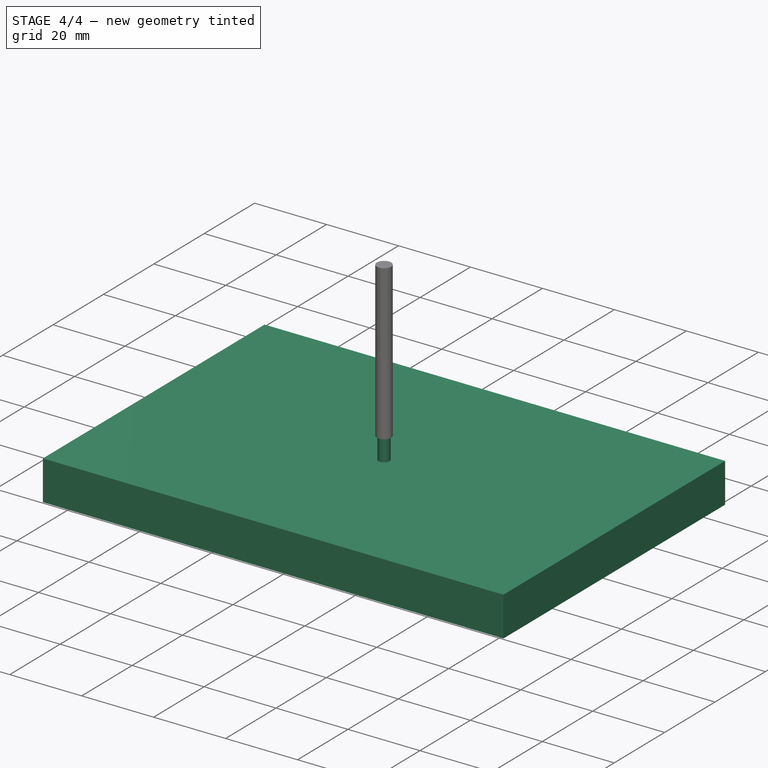
[diagram: stage 4 of 4 — iso view after this stage's code; geometry added in this stage tinted green]
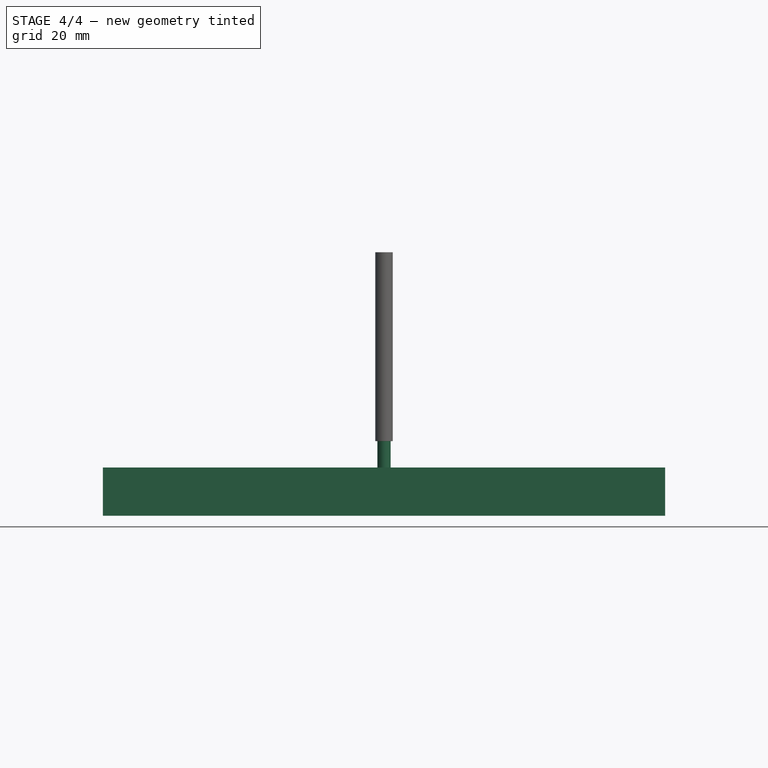
[diagram: stage 4 of 4 — front view after this stage's code; geometry added in this stage tinted green]
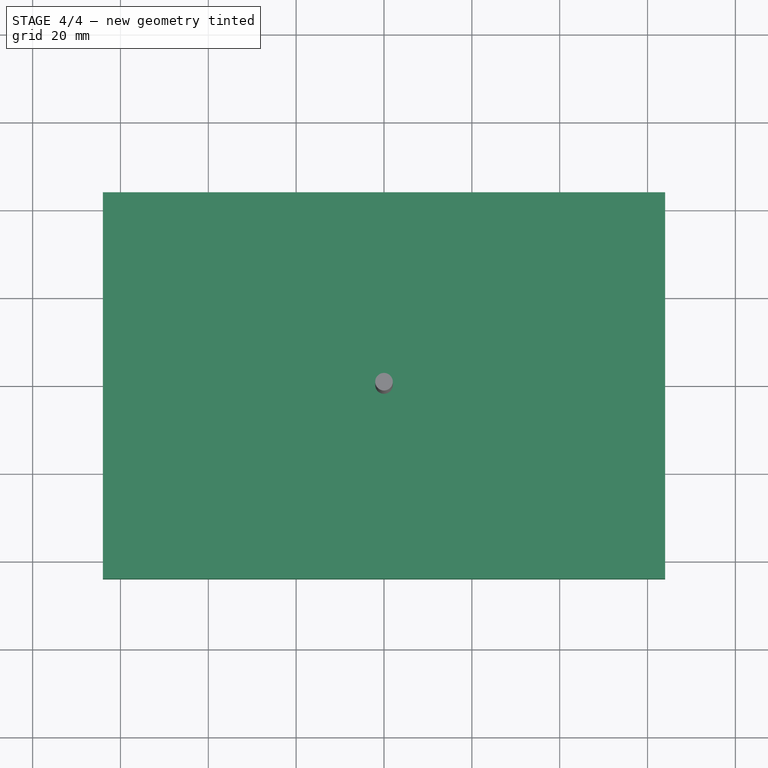
[diagram: stage 4 of 4 — top view after this stage's code; geometry added in this stage tinted green]
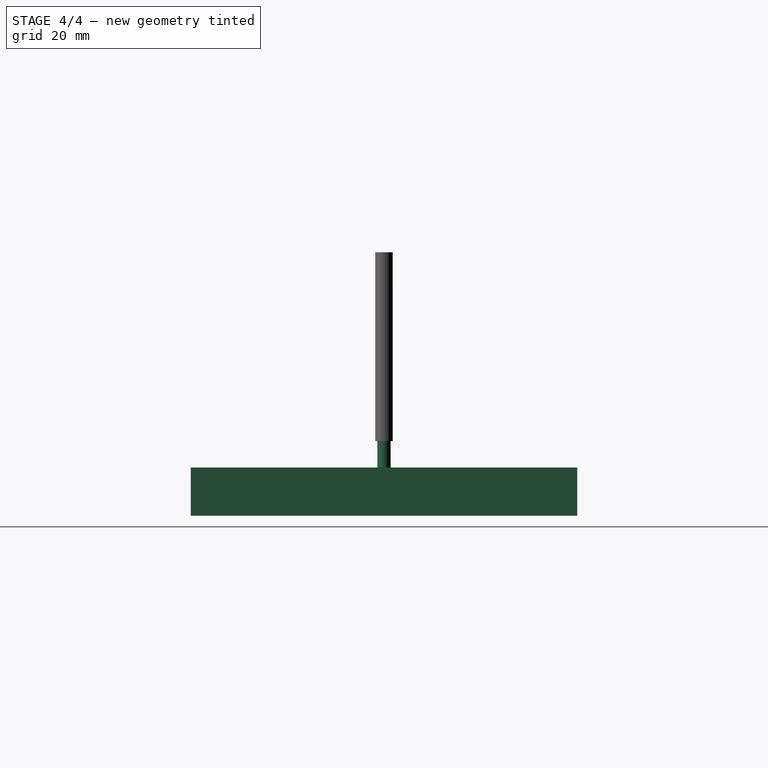
[diagram: stage 4 of 4 — right view after this stage's code; geometry added in this stage tinted green]
FEATURE [App::FeaturePython] SetupSheet  # Path/CAM operation (typed FeaturePython)
  ClearanceHeightExpression = OpStockZMax+SetupSheet.ClearanceHeightOffset
  ClearanceHeightOffset = 5
  CoolantMode = 0
  CoolantModes = None | Flood | Mist
  FinalDepthExpression = OpFinalDepth
  HorizRapid = 6.66667
  SafeHeightExpression = OpStockZMax+SetupSheet.SafeHeightOffset
  SafeHeightOffset = 3
  StartDepthExpression = OpStartDepth
  StepDownExpression = OpToolDiameter
  VertRapid = 6.66667
FEATURE [Part::FeaturePython] ToolBit001  label="2mm Endmill"  # Path/CAM toolbit (typed FeaturePython)
  BitPropertyNames = Chipload | CuttingEdgeHeight | Diameter | Flutes | Length | Material | ShankDiameter | SpindleDirection
  BitShape = C:/Program Files/FreeCAD 0.21/Mod\Path\Tools\Shape\endmill.fcstd
  Chipload = 0
  CuttingEdgeHeight = 6
  Diameter = 2
  File = <path>
  Flutes = 0
  Length = 40
  Material = 0
  ShankDiameter = 3
  ShapeName = endmill
  SpindleDirection = 0
FEATURE [Part::FeaturePython] ToolBit002  label="3mm Endmill"  # Path/CAM toolbit (typed FeaturePython)
  BitPropertyNames = Chipload | CuttingEdgeHeight | Diameter | Flutes | Length | Material | ShankDiameter | SpindleDirection
  BitShape = C:/Program Files/FreeCAD 0.21/Mod\Path\Tools\Shape\endmill.fcstd
  Chipload = 0
  CuttingEdgeHeight = 15
  Diameter = 3
  File = <path>
  Flutes = 0
  Length = 50
  Material = 0
  ShankDiameter = 3
  ShapeName = endmill
  SpindleDirection = 0
FEATURE [App::DocumentObjectGroup] Model
  Group = -> [Clone]
FEATURE [Path::FeaturePython] Adaptive  # Path/CAM operation (typed FeaturePython)
  Active = true
  Base = -> [Clone]
  ClearanceHeight = 6
  CoolantMode = 0
  CycleTime = 00:08:45
  ExtensionCorners = true
  ExtensionLengthDefault = 1.5
  FinalDepth = -10
  FinishDepth = 0
  FinishingProfile = true
  ForceInsideOut = false
  HelixAngle = 5
  HelixConeAngle = 0
  HelixDiameterLimit = 1.5
  KeepToolDownRatio = 3
  LiftDistance = 0
  OpFinalDepth = -10
  OpStartDepth = 1
  OpStockZMax = 1
  OpStockZMin = -10
  OpToolDiameter = 3
  OperationType = 0
  SafeHeight = 4
  Side = 1
  StartDepth = 1
  StepDown = 6
  StepOver = 25
  StockToLeave = 0
  StopProcessing = false
  Stopped = false
  Tolerance = 0.1
  ToolController = -> _mm_Endmill001
  UseHelixArcs = false
  UseOutline = true
  expr: ClearanceHeight = OpStockZMax + SetupSheet.ClearanceHeightOffset
  expr: ExtensionLengthDefault = OpToolDiameter / 2
  expr: SafeHeight = OpStockZMax + SetupSheet.SafeHeightOffset
  expr: StartDepth = OpStartDepth
  expr: StepDown = OpToolDiameter * 2
FEATURE [Path::FeaturePython] Adaptive001  label="Adaptive_2"  # Path/CAM operation (typed FeaturePython)
  Active = true
  Base = -> [Clone]
  ClearanceHeight = 6
  CoolantMode = 0
  CycleTime = 00:09:24
  ExtensionCorners = true
  ExtensionLengthDefault = 1.5
  FinalDepth = -1
  FinishDepth = 0
  FinishingProfile = true
  ForceInsideOut = false
  HelixAngle = 5
  HelixConeAngle = 0
  HelixDiameterLimit = 0
  KeepToolDownRatio = 3
  LiftDistance = 0
  OpFinalDepth = -1
  OpStartDepth = 1
  OpStockZMax = 1
  OpStockZMin = -10
  OpToolDiameter = 3
  OperationType = 0
  SafeHeight = 4
  Side = 1
  StartDepth = 1
  StepDown = 3
  StepOver = 40
  StockToLeave = 0
  StopProcessing = false
  Stopped = false
  Tolerance = 0.1
  ToolController = -> _mm_Endmill001
  UseHelixArcs = false
  UseOutline = true
  expr: ClearanceHeight = OpStockZMax + SetupSheet.ClearanceHeightOffset
  expr: ExtensionLengthDefault = OpToolDiameter / 2
  expr: SafeHeight = OpStockZMax + SetupSheet.SafeHeightOffset
  expr: StepDown = OpToolDiameter
FEATURE [Path::FeaturePython] Adaptive002  label="Adaptive_003"  # Path/CAM operation (typed FeaturePython)
  Active = true
  Base = -> [Clone]
  ClearanceHeight = 6
  CoolantMode = 0
  CycleTime = 00:00:47
  ExtensionCorners = true
  ExtensionLengthDefault = 1.5
  FinalDepth = -6
  FinishDepth = 0
  FinishingProfile = true
  ForceInsideOut = false
  HelixAngle = 5
  HelixConeAngle = 0
  HelixDiameterLimit = 0
  KeepToolDownRatio = 3
  LiftDistance = 0
  OpFinalDepth = -6
  OpStartDepth = 1
  OpStockZMax = 1
  OpStockZMin = -10
  OpToolDiameter = 3
  OperationType = 0
  SafeHeight = 4
  Side = 1
  StartDepth = 0
  StepDown = 6
  StepOver = 25
  StockToLeave = 0
  StopProcessing = false
  Stopped = false
  Tolerance = 0.1
  ToolController = -> _mm_Endmill001
  UseHelixArcs = false
  UseOutline = true
  expr: ClearanceHeight = OpStockZMax + SetupSheet.ClearanceHeightOffset
  expr: ExtensionLengthDefault = OpToolDiameter / 2
  expr: SafeHeight = OpStockZMax + SetupSheet.SafeHeightOffset
  expr: StepDown = OpToolDiameter * 2
FEATURE [Path::FeaturePython] Drilling  # Path/CAM operation (typed FeaturePython)
  Active = true
  AddTipLength = false
  Base = -> [Clone]
  ClearanceHeight = 6
  CoolantMode = 0
  CycleTime = 00:00:33
  Disabled = Clone.Edge51 | Clone.Edge60 | Clone.Edge54 | Clone.Edge44
  DwellEnabled = false
  DwellTime = 1
  ExtraOffset = 0
  FinalDepth = -10
  KeepToolDown = false
  OpFinalDepth = -10
  OpStartDepth = 1
  OpStockZMax = 1
  OpStockZMin = -10
  OpToolDiameter = 2
  PeckDepth = 0.4
  PeckEnabled = true
  RetractHeight = 4
  RetractMode = 0
  SafeHeight = 4
  StartDepth = 1
  ToolController = -> _mm_Endmill
  chipBreakEnabled = false
  expr: ClearanceHeight = OpStockZMax + SetupSheet.ClearanceHeightOffset
  expr: PeckDepth = OpToolDiameter * 0.2
  expr: RetractHeight = StartDepth + SetupSheet.SafeHeightOffset
  expr: SafeHeight = OpStockZMax + SetupSheet.SafeHeightOffset
  expr: StartDepth = OpStartDepth
FEATURE [Path::FeaturePython] Adaptive005  label="Adaptive_outcut"  # Path/CAM operation (typed FeaturePython)
  Active = false
  Base = -> [Clone]
  ClearanceHeight = 6
  CoolantMode = 0
  CycleTime = 00:25:31
  ExtensionCorners = true
  ExtensionLengthDefault = 1.5
  FinalDepth = -10
  FinishDepth = 0
  FinishingProfile = true
  ForceInsideOut = false
  HelixAngle = 3
  HelixConeAngle = 0
  HelixDiameterLimit = 1
  KeepToolDownRatio = 3
  LiftDistance = 0
  OpFinalDepth = -10
  OpStartDepth = 1
  OpStockZMax = 1
  OpStockZMin = -10
  OpToolDiameter = 3
  OperationType = 1
  SafeHeight = 4
  Side = 0
  StartDepth = 1
  StepDown = 6
  StepOver = 25
  StockToLeave = 0
  StopProcessing = false
  Stopped = false
  Tolerance = 0.1
  ToolController = -> _mm_Endmill001
  UseHelixArcs = false
  UseOutline = false
  expr: ClearanceHeight = OpStockZMax + SetupSheet.ClearanceHeightOffset
  expr: ExtensionLengthDefault = OpToolDiameter / 2
  expr: SafeHeight = OpStockZMax + SetupSheet.SafeHeightOffset
  expr: StartDepth = OpStartDepth
  expr: StepDown = OpToolDiameter * 2
FEATURE [Part::FeaturePython] Stock001  # WARN: FeaturePython — macro-defined, semantics opaque (R4)
  Base = -> Model
  ExtXneg = 4
  ExtXpos = 4
  ExtYneg = 4
  ExtYpos = 4
  ExtZneg = 0
  ExtZpos = 1
  Placement = pos=(-60,-40,-10) rot=(0,0,1;0rad)
  StockType = FromBase
FEATURE [App::FeaturePython] PropertyBag  # WARN: FeaturePython — macro-defined, semantics opaque (R4)
FEATURE [App::FeaturePython] PropertyBag001  # WARN: FeaturePython — macro-defined, semantics opaque (R4)
FEATURE [Part::FeaturePython] ToolBit  label="3mm-thread-cutter"  # Path/CAM toolbit (typed FeaturePython)
  BitPropertyNames = Chipload | Crest | Diameter | Flutes | Length | Material | NeckDiameter | NeckLength | ShankDiameter | cuttingAngle
  BitShape = C:/Program Files/FreeCAD 0.21/Mod\Path\Tools\Shape\thread-mill.fcstd
  Chipload = 0
  Crest = 0.1
  Diameter = 3
  File = <path>
  Flutes = 0
  Length = 50
  Material = 0
  NeckDiameter = 2
  NeckLength = 20
  ShankDiameter = 3
  ShapeName = thread_mill
  cuttingAngle = 60
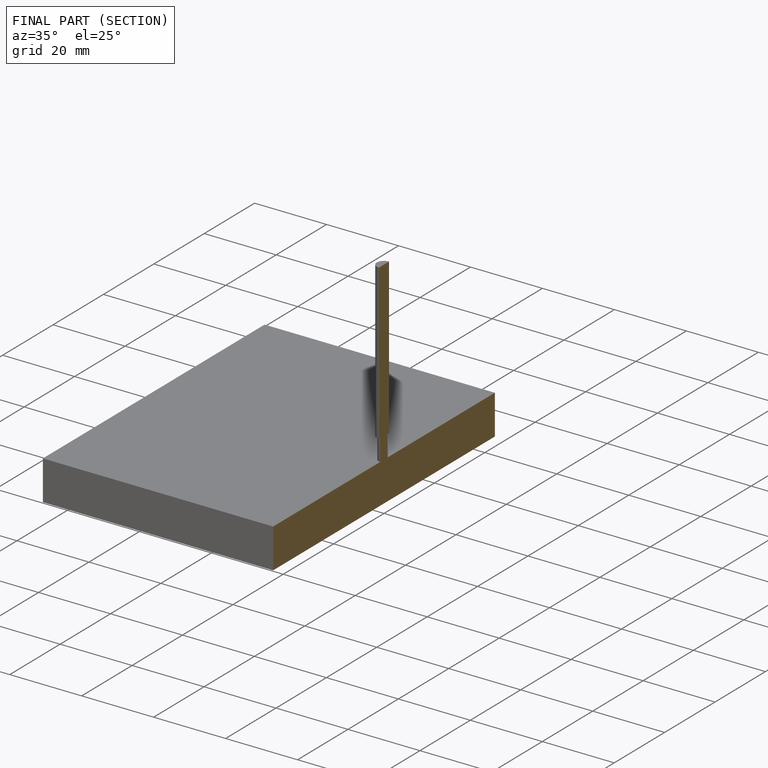
[diagram: finished part — half-section view (interior)]
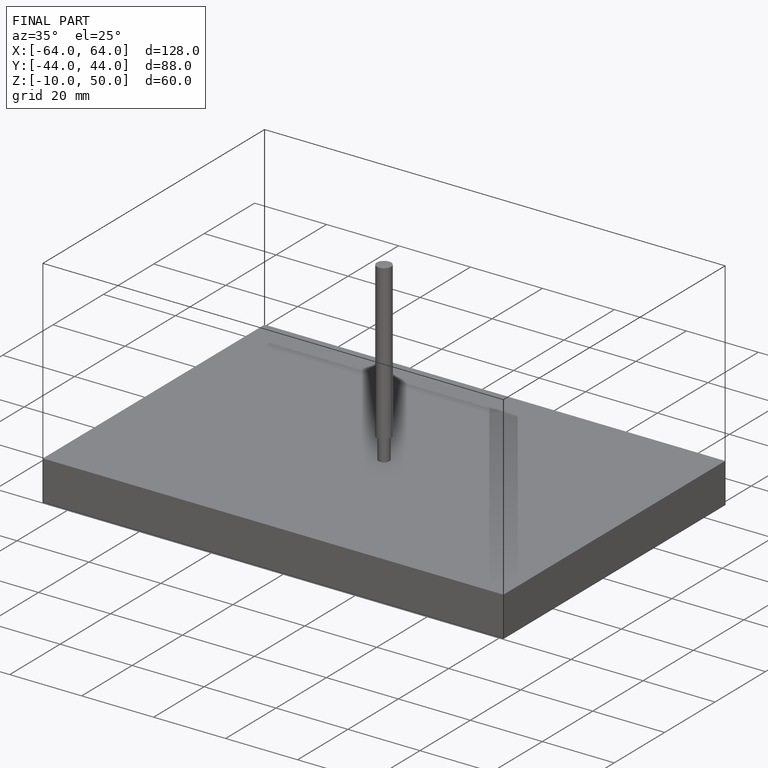
[diagram: finished part — iso view with bounding-box wireframe]
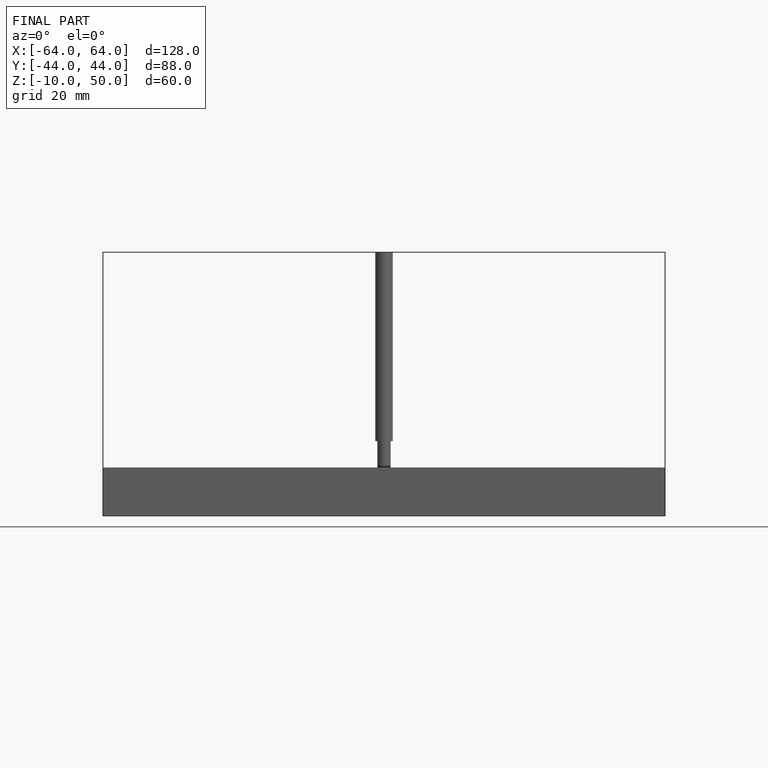
[diagram: finished part — front view with bounding-box wireframe]
